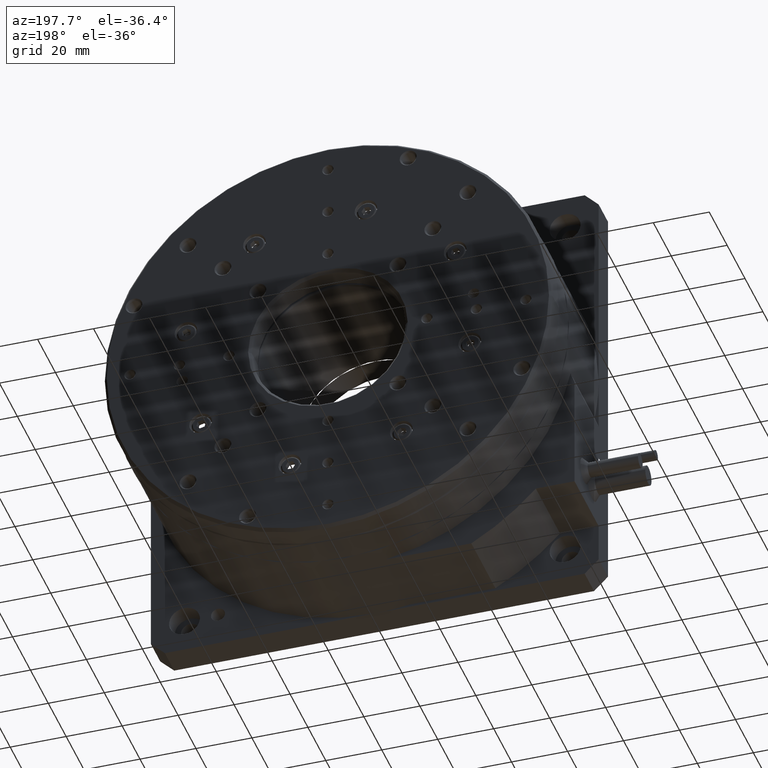
[diagram: clean part render]
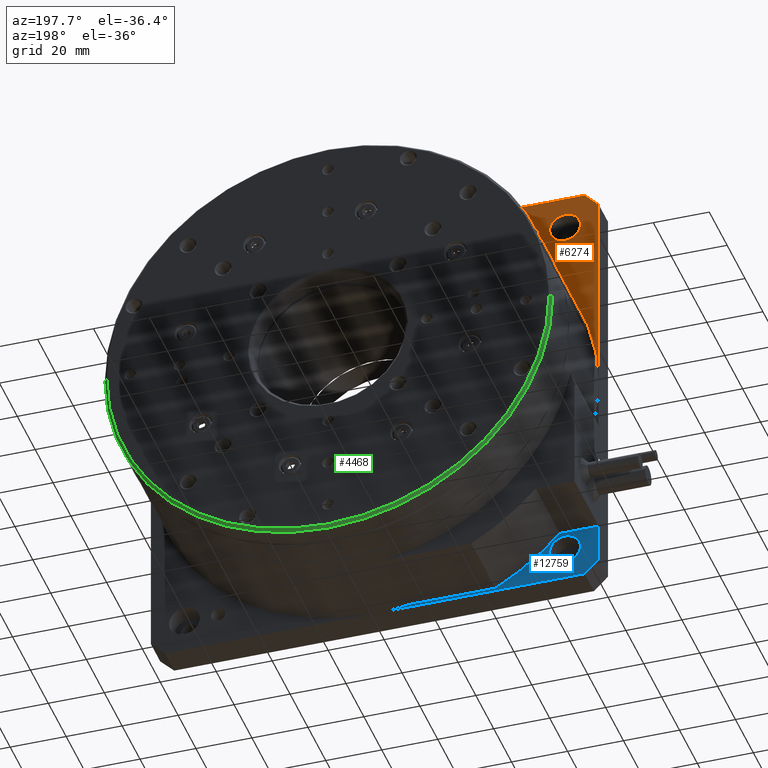
[diagram: same view with three faces highlighted in distinct colors, each labeled with its STEP entity id]
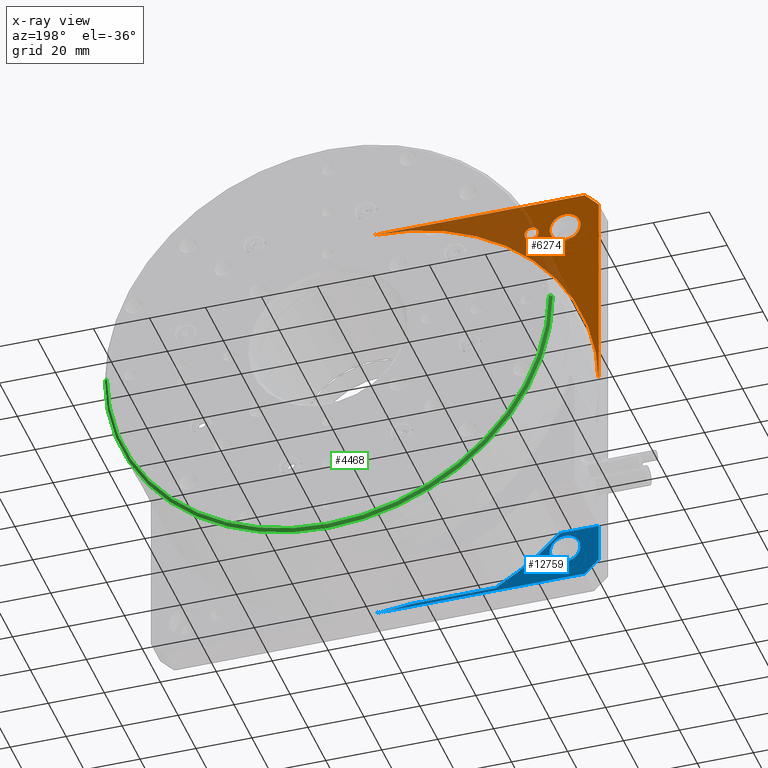
[diagram: x-ray of the same camera — body ghosted, the three highlighted faces saturated]
A machine part, auxiliary view with three faces highlighted in distinct colors.
The next image is the same camera in x-ray (body ghosted, the three faces saturated) — at least one of them is partly hidden behind the body in this view.
Their STEP definitions:

[orange] entity #6274 — the highlighted planar face has unit normal (-0, -1, 0).
#166 = DIRECTION ( 'NONE',  ( -1.728409803594637900E-018, -1.000000000000000000, 1.944368977947036900E-016 ) ) ;
#484 = LINE ( 'NONE', #6547, #12218 ) ;
#1052 = DIRECTION ( 'NONE',  ( 3.469446951953675000E-018, -5.543721698860720200E-017, -1.000000000000000000 ) ) ;
#1299 = DIRECTION ( 'NONE',  ( 1.728409803594637900E-018, 1.000000000000000000, -1.944368977947036900E-016 ) ) ;
#1351 = DIRECTION ( 'NONE',  ( 0.0000000000000000000, 0.0000000000000000000, 1.000000000000000000 ) ) ;
#1483 = DIRECTION ( 'NONE',  ( -1.728409803594625400E-018, -1.000000000000000000, 5.543721698860720200E-017 ) ) ;
#2033 = FACE_BOUND ( 'NONE', #2863, .T. ) ;
#2859 = VERTEX_POINT ( 'NONE', #9025 ) ;
#2863 = EDGE_LOOP ( 'NONE', ( #13310, #16384 ) ) ;
#3041 = EDGE_CURVE ( 'NONE', #14170, #3422, #3242, .T. ) ;
#3242 = CIRCLE ( 'NONE', #7430, 2.500000000000002200 ) ;
#3422 = VERTEX_POINT ( 'NONE', #13102 ) ;
#3698 = AXIS2_PLACEMENT_3D ( 'NONE', #16137, #6797, #9229 ) ;
#4058 = EDGE_CURVE ( 'NONE', #14409, #15562, #484, .T. ) ;
#4072 = CARTESIAN_POINT ( 'NONE',  ( 0.0000000000000000000, 10.50000000000000700, -5.000000000000046200 ) ) ;
#4084 = ORIENTED_EDGE ( 'NONE', *, *, #10600, .F. ) ;
#4410 = DIRECTION ( 'NONE',  ( -1.000000000000000000, -8.642049017973337000E-019, -2.636779683484748800E-016 ) ) ;
#4820 = CIRCLE ( 'NONE', #3698, 5.499999999999992000 ) ;
#4915 = AXIS2_PLACEMENT_3D ( 'NONE', #6689, #1483, #9394 ) ;
#4962 = FACE_OUTER_BOUND ( 'NONE', #9411, .T. ) ;
#5361 = ORIENTED_EDGE ( 'NONE', *, *, #11178, .F. ) ;
#5568 = EDGE_CURVE ( 'NONE', #16189, #11620, #4820, .T. ) ;
#5614 = PLANE ( 'NONE',  #4915 ) ;
#5795 = ORIENTED_EDGE ( 'NONE', *, *, #5568, .F. ) ;
#6258 = CIRCLE ( 'NONE', #7056, 80.00000000000000000 ) ;
#6274 = ADVANCED_FACE ( 'NONE', ( #4962, #2033, #10831 ), #5614, .F. ) ;
#6547 = CARTESIAN_POINT ( 'NONE',  ( -1.387778780781445700E-014, 10.50000000000000900, -4.163336342344337000E-014 ) ) ;
#6689 = CARTESIAN_POINT ( 'NONE',  ( 79.99999999999998600, 10.50000000000000400, -80.00000000000002800 ) ) ;
#6797 = DIRECTION ( 'NONE',  ( 1.728409803594637900E-018, 1.000000000000000000, -1.944368977947036900E-016 ) ) ;
#6880 = DIRECTION ( 'NONE',  ( 0.0000000000000000000, 0.0000000000000000000, 1.000000000000000000 ) ) ;
#7056 = AXIS2_PLACEMENT_3D ( 'NONE', #10278, #15500, #8804 ) ;
#7391 = EDGE_CURVE ( 'NONE', #14409, #2859, #15418, .T. ) ;
#7430 = AXIS2_PLACEMENT_3D ( 'NONE', #9596, #166, #6880 ) ;
#7846 = CARTESIAN_POINT ( 'NONE',  ( 11.99999999999999600, 10.50000000000000700, -6.500000000000005300 ) ) ;
#8018 = DIRECTION ( 'NONE',  ( -1.728409803594637900E-018, -1.000000000000000000, 1.944368977947036900E-016 ) ) ;
#8552 = ORIENTED_EDGE ( 'NONE', *, *, #14501, .F. ) ;
#8632 = CARTESIAN_POINT ( 'NONE',  ( 0.0000000000000000000, 10.50000000000000400, -80.00000000000002800 ) ) ;
#8804 = DIRECTION ( 'NONE',  ( 1.734723475976807100E-016, -6.505213034913026600E-017, -1.000000000000000000 ) ) ;
#8864 = CARTESIAN_POINT ( 'NONE',  ( 4.999999999999976900, 10.50000000000000900, -2.775557561562891400E-014 ) ) ;
#9025 = CARTESIAN_POINT ( 'NONE',  ( 5.000000000000004400, 10.50000000000000900, -2.775557561562891400E-014 ) ) ;
#9229 = DIRECTION ( 'NONE',  ( 0.0000000000000000000, 0.0000000000000000000, 1.000000000000000000 ) ) ;
#9371 = DIRECTION ( 'NONE',  ( 0.0000000000000000000, 0.0000000000000000000, 1.000000000000000000 ) ) ;
#9394 = DIRECTION ( 'NONE',  ( 9.020562075079401800E-017, -5.543721698860720200E-017, -1.000000000000000000 ) ) ;
#9411 = EDGE_LOOP ( 'NONE', ( #9458, #10784, #8552, #4084 ) ) ;
#9458 = ORIENTED_EDGE ( 'NONE', *, *, #4058, .F. ) ;
#9596 = CARTESIAN_POINT ( 'NONE',  ( 23.99999999999998600, 10.50000000000000900, -11.99999999999998200 ) ) ;
#9748 = VECTOR ( 'NONE', #10117, 1000.000000000000000 ) ;
#10117 = DIRECTION ( 'NONE',  ( 0.7071067811865463500, 3.981111720914984000E-017, 0.7071067811865487900 ) ) ;
#10207 = EDGE_CURVE ( 'NONE', #3422, #14170, #13834, .T. ) ;
#10278 = CARTESIAN_POINT ( 'NONE',  ( 79.99999999999998600, 10.50000000000000400, -80.00000000000002800 ) ) ;
#10600 = EDGE_CURVE ( 'NONE', #15562, #11234, #6258, .T. ) ;
#10677 = CARTESIAN_POINT ( 'NONE',  ( 23.99999999999998600, 10.50000000000000900, -11.99999999999998200 ) ) ;
#10784 = ORIENTED_EDGE ( 'NONE', *, *, #7391, .T. ) ;
#10831 = FACE_BOUND ( 'NONE', #13588, .T. ) ;
#10915 = AXIS2_PLACEMENT_3D ( 'NONE', #10677, #8018, #9371 ) ;
#11178 = EDGE_CURVE ( 'NONE', #11620, #16189, #15920, .T. ) ;
#11234 = VERTEX_POINT ( 'NONE', #15942 ) ;
#11474 = CARTESIAN_POINT ( 'NONE',  ( 23.99999999999998600, 10.50000000000000900, -14.49999999999998600 ) ) ;
#11620 = VERTEX_POINT ( 'NONE', #15403 ) ;
#12218 = VECTOR ( 'NONE', #1052, 1000.000000000000000 ) ;
#12356 = VECTOR ( 'NONE', #4410, 1000.000000000000000 ) ;
#12512 = CARTESIAN_POINT ( 'NONE',  ( 159.9999999999999700, 10.50000000000000900, 1.387778780781445700E-014 ) ) ;
#13102 = CARTESIAN_POINT ( 'NONE',  ( 23.99999999999998600, 10.50000000000000900, -9.499999999999980500 ) ) ;
#13310 = ORIENTED_EDGE ( 'NONE', *, *, #10207, .T. ) ;
#13588 = EDGE_LOOP ( 'NONE', ( #5795, #5361 ) ) ;
#13834 = CIRCLE ( 'NONE', #10915, 2.500000000000002200 ) ;
#14170 = VERTEX_POINT ( 'NONE', #11474 ) ;
#14409 = VERTEX_POINT ( 'NONE', #4072 ) ;
#14501 = EDGE_CURVE ( 'NONE', #11234, #2859, #14860, .T. ) ;
#14601 = CARTESIAN_POINT ( 'NONE',  ( 11.99999999999999600, 10.50000000000000700, -11.99999999999999600 ) ) ;
#14860 = LINE ( 'NONE', #12512, #12356 ) ;
#15403 = CARTESIAN_POINT ( 'NONE',  ( 11.99999999999999800, 10.50000000000000500, -17.49999999999998900 ) ) ;
#15418 = LINE ( 'NONE', #8864, #9748 ) ;
#15500 = DIRECTION ( 'NONE',  ( 1.728409803594637900E-018, 1.000000000000000000, -1.944368977947036900E-016 ) ) ;
#15562 = VERTEX_POINT ( 'NONE', #8632 ) ;
#15642 = AXIS2_PLACEMENT_3D ( 'NONE', #14601, #1299, #1351 ) ;
#15920 = CIRCLE ( 'NONE', #15642, 5.499999999999992000 ) ;
#15942 = CARTESIAN_POINT ( 'NONE',  ( 79.99999999999997200, 10.50000000000000900, -1.387778780781445700E-014 ) ) ;
#16137 = CARTESIAN_POINT ( 'NONE',  ( 11.99999999999999600, 10.50000000000000700, -11.99999999999999600 ) ) ;
#16189 = VERTEX_POINT ( 'NONE', #7846 ) ;
#16384 = ORIENTED_EDGE ( 'NONE', *, *, #3041, .T. ) ;

[blue] entity #12759 — the highlighted planar face has unit normal (-0, -1, 0).
#78 = CARTESIAN_POINT ( 'NONE',  ( 0.009999999999996123100, 10.50000000000000200, -116.0500000000000400 ) ) ;
#264 = CIRCLE ( 'NONE', #16058, 90.00000000000001400 ) ;
#738 = CARTESIAN_POINT ( 'NONE',  ( 79.99999999999998600, 10.50000000000000400, -80.00000000000002800 ) ) ;
#780 = CARTESIAN_POINT ( 'NONE',  ( 80.00000000000000000, 10.49999999999999800, -159.0000000000000600 ) ) ;
#822 = LINE ( 'NONE', #7407, #15070 ) ;
#954 = VECTOR ( 'NONE', #11828, 1000.000000000000000 ) ;
#1059 = CARTESIAN_POINT ( 'NONE',  ( 0.009999999999996123100, 10.50000000000000000, -141.0000000000000600 ) ) ;
#1310 = VERTEX_POINT ( 'NONE', #6244 ) ;
#1339 = EDGE_LOOP ( 'NONE', ( #4035, #2137, #13124, #16156, #6502, #10803, #3821, #9332, #8818 ) ) ;
#1362 = CARTESIAN_POINT ( 'NONE',  ( 12.00000000000020600, 10.49999999999999800, -153.5000000000002800 ) ) ;
#1370 = DIRECTION ( 'NONE',  ( 1.734723475976807100E-016, -6.505213034913026600E-017, -1.000000000000000000 ) ) ;
#1702 = FACE_BOUND ( 'NONE', #14038, .T. ) ;
#1735 = CARTESIAN_POINT ( 'NONE',  ( 80.00000000000000000, 10.49999999999999800, -160.0000000000000300 ) ) ;
#2058 = CARTESIAN_POINT ( 'NONE',  ( 36.88387772537981800, 10.49999999999999800, -159.0000000000000600 ) ) ;
#2137 = ORIENTED_EDGE ( 'NONE', *, *, #8560, .F. ) ;
#2193 = EDGE_CURVE ( 'NONE', #2411, #2218, #16903, .T. ) ;
#2218 = VERTEX_POINT ( 'NONE', #2058 ) ;
#2223 = CARTESIAN_POINT ( 'NONE',  ( 12.00000000000020400, 10.50000000000000000, -148.0000000000002800 ) ) ;
#2346 = EDGE_CURVE ( 'NONE', #16635, #5307, #7859, .T. ) ;
#2411 = VERTEX_POINT ( 'NONE', #6560 ) ;
#2424 = VERTEX_POINT ( 'NONE', #1362 ) ;
#2965 = CARTESIAN_POINT ( 'NONE',  ( 13.82598697373718700, 10.50000000000000000, -141.0000000000000600 ) ) ;
#3291 = DIRECTION ( 'NONE',  ( 3.469446951953675000E-018, -5.543721698860720200E-017, -1.000000000000000000 ) ) ;
#3431 = ORIENTED_EDGE ( 'NONE', *, *, #6914, .F. ) ;
#3505 = VERTEX_POINT ( 'NONE', #78 ) ;
#3549 = AXIS2_PLACEMENT_3D ( 'NONE', #9443, #16074, #1370 ) ;
#3821 = ORIENTED_EDGE ( 'NONE', *, *, #13168, .F. ) ;
#3896 = AXIS2_PLACEMENT_3D ( 'NONE', #2223, #17061, #10206 ) ;
#4035 = ORIENTED_EDGE ( 'NONE', *, *, #16386, .F. ) ;
#4214 = VECTOR ( 'NONE', #3291, 1000.000000000000000 ) ;
#4602 = VECTOR ( 'NONE', #11876, 1000.000000000000000 ) ;
#4772 = DIRECTION ( 'NONE',  ( 1.728409803594637900E-018, 1.000000000000000000, -1.944368977947036900E-016 ) ) ;
#4845 = CARTESIAN_POINT ( 'NONE',  ( -1.387778780781445700E-014, 10.50000000000000200, -116.0500000000000500 ) ) ;
#4857 = LINE ( 'NONE', #16011, #7564 ) ;
#5277 = CARTESIAN_POINT ( 'NONE',  ( -1.387778780781445700E-014, 10.50000000000000000, -155.0000000000000900 ) ) ;
#5307 = VERTEX_POINT ( 'NONE', #1735 ) ;
#6227 = DIRECTION ( 'NONE',  ( 1.728409803594637900E-018, 1.000000000000000000, -1.944368977947036900E-016 ) ) ;
#6244 = CARTESIAN_POINT ( 'NONE',  ( -2.775557561562891400E-014, 10.50000000000000000, -155.0000000000000300 ) ) ;
#6288 = CARTESIAN_POINT ( 'NONE',  ( 12.00000000000020400, 10.50000000000000000, -148.0000000000002800 ) ) ;
#6502 = ORIENTED_EDGE ( 'NONE', *, *, #2346, .F. ) ;
#6560 = CARTESIAN_POINT ( 'NONE',  ( 67.39047978708158800, 10.49999999999999800, -159.0000000000000600 ) ) ;
#6895 = CIRCLE ( 'NONE', #3896, 5.500000000000005300 ) ;
#6914 = EDGE_CURVE ( 'NONE', #9671, #2424, #12288, .T. ) ;
#7209 = DIRECTION ( 'NONE',  ( 9.020562075079401800E-017, -5.543721698860720200E-017, -1.000000000000000000 ) ) ;
#7407 = CARTESIAN_POINT ( 'NONE',  ( 79.99999999999998600, 10.50000000000000200, -116.0500000000000400 ) ) ;
#7564 = VECTOR ( 'NONE', #17349, 1000.000000000000000 ) ;
#7859 = LINE ( 'NONE', #10395, #954 ) ;
#8032 = DIRECTION ( 'NONE',  ( -9.020562075079401800E-017, 5.543721698860720200E-017, 1.000000000000000000 ) ) ;
#8084 = CARTESIAN_POINT ( 'NONE',  ( 12.00000000000020400, 10.50000000000000000, -142.5000000000002600 ) ) ;
#8549 = AXIS2_PLACEMENT_3D ( 'NONE', #738, #10124, #7209 ) ;
#8560 = EDGE_CURVE ( 'NONE', #2218, #17049, #264, .T. ) ;
#8652 = CARTESIAN_POINT ( 'NONE',  ( 5.000000000000004400, 10.49999999999999800, -160.0000000000000600 ) ) ;
#8818 = ORIENTED_EDGE ( 'NONE', *, *, #10792, .F. ) ;
#9246 = LINE ( 'NONE', #14014, #4214 ) ;
#9332 = ORIENTED_EDGE ( 'NONE', *, *, #13699, .F. ) ;
#9443 = CARTESIAN_POINT ( 'NONE',  ( 79.99999999999998600, 10.50000000000000400, -80.00000000000002800 ) ) ;
#9671 = VERTEX_POINT ( 'NONE', #8084 ) ;
#10119 = EDGE_CURVE ( 'NONE', #16635, #1310, #15292, .T. ) ;
#10124 = DIRECTION ( 'NONE',  ( -1.728409803594625400E-018, -1.000000000000000000, 5.543721698860720200E-017 ) ) ;
#10206 = DIRECTION ( 'NONE',  ( 0.0000000000000000000, 0.0000000000000000000, 1.000000000000000000 ) ) ;
#10395 = CARTESIAN_POINT ( 'NONE',  ( 160.0000000000000000, 10.49999999999999800, -160.0000000000000300 ) ) ;
#10792 = EDGE_CURVE ( 'NONE', #14826, #3505, #11753, .T. ) ;
#10803 = ORIENTED_EDGE ( 'NONE', *, *, #10119, .T. ) ;
#10911 = CARTESIAN_POINT ( 'NONE',  ( 0.009999999999996123100, 10.50000000000000400, -80.00000000000004300 ) ) ;
#11313 = VECTOR ( 'NONE', #8032, 1000.000000000000000 ) ;
#11327 = ORIENTED_EDGE ( 'NONE', *, *, #13280, .F. ) ;
#11329 = CIRCLE ( 'NONE', #3549, 80.00000000000000000 ) ;
#11599 = DIRECTION ( 'NONE',  ( 9.251858538542969900E-016, -5.782411586589356200E-017, -1.000000000000000000 ) ) ;
#11753 = LINE ( 'NONE', #10911, #11313 ) ;
#11828 = DIRECTION ( 'NONE',  ( 1.000000000000000000, 8.642049017973337000E-019, 2.636779683484748300E-016 ) ) ;
#11876 = DIRECTION ( 'NONE',  ( -0.7071067811865475700, 3.858894691635869000E-017, 0.7071067811865474600 ) ) ;
#12288 = CIRCLE ( 'NONE', #16039, 5.500000000000005300 ) ;
#12729 = VECTOR ( 'NONE', #14153, 1000.000000000000000 ) ;
#12759 = ADVANCED_FACE ( 'NONE', ( #17241, #1702 ), #16727, .F. ) ;
#13124 = ORIENTED_EDGE ( 'NONE', *, *, #2193, .F. ) ;
#13168 = EDGE_CURVE ( 'NONE', #13689, #1310, #9246, .T. ) ;
#13280 = EDGE_CURVE ( 'NONE', #2424, #9671, #6895, .T. ) ;
#13689 = VERTEX_POINT ( 'NONE', #4845 ) ;
#13699 = EDGE_CURVE ( 'NONE', #3505, #13689, #822, .T. ) ;
#14014 = CARTESIAN_POINT ( 'NONE',  ( -1.387778780781445700E-014, 10.50000000000000900, -4.163336342344337000E-014 ) ) ;
#14038 = EDGE_LOOP ( 'NONE', ( #3431, #11327 ) ) ;
#14153 = DIRECTION ( 'NONE',  ( -1.000000000000000000, -8.642049017973240700E-019, -9.020562075079404300E-017 ) ) ;
#14355 = DIRECTION ( 'NONE',  ( 0.0000000000000000000, 0.0000000000000000000, 1.000000000000000000 ) ) ;
#14375 = EDGE_CURVE ( 'NONE', #5307, #2411, #11329, .T. ) ;
#14826 = VERTEX_POINT ( 'NONE', #1059 ) ;
#15070 = VECTOR ( 'NONE', #16741, 1000.000000000000000 ) ;
#15292 = LINE ( 'NONE', #5277, #4602 ) ;
#16011 = CARTESIAN_POINT ( 'NONE',  ( 79.99999999999998600, 10.50000000000000000, -141.0000000000000600 ) ) ;
#16039 = AXIS2_PLACEMENT_3D ( 'NONE', #6288, #6227, #14355 ) ;
#16058 = AXIS2_PLACEMENT_3D ( 'NONE', #16855, #4772, #11599 ) ;
#16074 = DIRECTION ( 'NONE',  ( 1.728409803594637900E-018, 1.000000000000000000, -1.944368977947036900E-016 ) ) ;
#16156 = ORIENTED_EDGE ( 'NONE', *, *, #14375, .F. ) ;
#16386 = EDGE_CURVE ( 'NONE', #17049, #14826, #4857, .T. ) ;
#16635 = VERTEX_POINT ( 'NONE', #8652 ) ;
#16727 = PLANE ( 'NONE',  #8549 ) ;
#16741 = DIRECTION ( 'NONE',  ( -1.000000000000000000, -8.642049017973240700E-019, -9.020562075079404300E-017 ) ) ;
#16855 = CARTESIAN_POINT ( 'NONE',  ( 79.99999999999998600, 10.50000000000000400, -80.00000000000002800 ) ) ;
#16903 = LINE ( 'NONE', #780, #12729 ) ;
#17049 = VERTEX_POINT ( 'NONE', #2965 ) ;
#17061 = DIRECTION ( 'NONE',  ( 1.728409803594637900E-018, 1.000000000000000000, -1.944368977947036900E-016 ) ) ;
#17241 = FACE_OUTER_BOUND ( 'NONE', #1339, .T. ) ;
#17349 = DIRECTION ( 'NONE',  ( -1.000000000000000000, -8.642049017973240700E-019, -9.020562075079404300E-017 ) ) ;

[green] entity #4468 — the highlighted conical surface has half-angle 45 deg.
#1037 = CIRCLE ( 'NONE', #5460, 80.00000000000001400 ) ;
#2405 = CARTESIAN_POINT ( 'NONE',  ( 0.9999999999999870100, 63.00000000000001400, -80.00000000000009900 ) ) ;
#2789 = ORIENTED_EDGE ( 'NONE', *, *, #6462, .T. ) ;
#3094 = CIRCLE ( 'NONE', #12230, 79.00000000000000000 ) ;
#3815 = DIRECTION ( 'NONE',  ( -0.7071067811865577900, -0.7071067811865373600, 3.907724963002873500E-016 ) ) ;
#4331 = LINE ( 'NONE', #14096, #16911 ) ;
#4425 = LINE ( 'NONE', #14644, #14909 ) ;
#4468 = ADVANCED_FACE ( 'NONE', ( #6539 ), #6734, .T. ) ;
#5460 = AXIS2_PLACEMENT_3D ( 'NONE', #17371, #13457, #8040 ) ;
#5532 = EDGE_CURVE ( 'NONE', #7513, #10618, #1037, .T. ) ;
#6462 = EDGE_CURVE ( 'NONE', #12172, #10618, #4331, .T. ) ;
#6539 = FACE_OUTER_BOUND ( 'NONE', #10698, .T. ) ;
#6734 = CONICAL_SURFACE ( 'NONE', #8800, 79.00000000000000000, 0.7853981633974621600 ) ;
#6808 = ORIENTED_EDGE ( 'NONE', *, *, #16808, .F. ) ;
#7513 = VERTEX_POINT ( 'NONE', #14559 ) ;
#8040 = DIRECTION ( 'NONE',  ( -1.000000000000000000, 4.336808689942016700E-016, 0.0000000000000000000 ) ) ;
#8728 = DIRECTION ( 'NONE',  ( 0.7071067811865570100, -0.7071067811865379100, 3.041768906767367600E-016 ) ) ;
#8800 = AXIS2_PLACEMENT_3D ( 'NONE', #15733, #10363, #8885 ) ;
#8885 = DIRECTION ( 'NONE',  ( 1.000000000000000000, -3.513364001978343500E-016, 0.0000000000000000000 ) ) ;
#9891 = ORIENTED_EDGE ( 'NONE', *, *, #15582, .F. ) ;
#10363 = DIRECTION ( 'NONE',  ( -4.014435913841642000E-016, -1.000000000000000000, 4.301710841555254300E-016 ) ) ;
#10618 = VERTEX_POINT ( 'NONE', #11595 ) ;
#10698 = EDGE_LOOP ( 'NONE', ( #6808, #9891, #2789, #12769 ) ) ;
#11595 = CARTESIAN_POINT ( 'NONE',  ( 159.9999999999999700, 61.99999999999996400, -80.00000000000011400 ) ) ;
#11666 = DIRECTION ( 'NONE',  ( 4.014435913841642000E-016, 1.000000000000000000, -4.301710841555254300E-016 ) ) ;
#12172 = VERTEX_POINT ( 'NONE', #12982 ) ;
#12230 = AXIS2_PLACEMENT_3D ( 'NONE', #12942, #11666, #17033 ) ;
#12769 = ORIENTED_EDGE ( 'NONE', *, *, #5532, .F. ) ;
#12942 = CARTESIAN_POINT ( 'NONE',  ( 79.99999999999997200, 62.99999999999998600, -80.00000000000011400 ) ) ;
#12982 = CARTESIAN_POINT ( 'NONE',  ( 158.9999999999999700, 62.99999999999995700, -80.00000000000011400 ) ) ;
#13257 = VERTEX_POINT ( 'NONE', #2405 ) ;
#13457 = DIRECTION ( 'NONE',  ( -4.014435913841642000E-016, -1.000000000000000000, 4.301710841555254300E-016 ) ) ;
#14096 = CARTESIAN_POINT ( 'NONE',  ( 158.9999999999999700, 62.99999999999995700, -80.00000000000011400 ) ) ;
#14559 = CARTESIAN_POINT ( 'NONE',  ( -2.775557561562891400E-014, 62.00000000000003600, -80.00000000000009900 ) ) ;
#14644 = CARTESIAN_POINT ( 'NONE',  ( 0.9999999999999731300, 63.00000000000001400, -80.00000000000009900 ) ) ;
#14909 = VECTOR ( 'NONE', #3815, 1000.000000000000000 ) ;
#15582 = EDGE_CURVE ( 'NONE', #12172, #13257, #3094, .T. ) ;
#15733 = CARTESIAN_POINT ( 'NONE',  ( 79.99999999999997200, 62.99999999999998600, -80.00000000000011400 ) ) ;
#16808 = EDGE_CURVE ( 'NONE', #13257, #7513, #4425, .T. ) ;
#16911 = VECTOR ( 'NONE', #8728, 1000.000000000000100 ) ;
#17033 = DIRECTION ( 'NONE',  ( -1.000000000000000000, 3.513364001978343500E-016, 0.0000000000000000000 ) ) ;
#17371 = CARTESIAN_POINT ( 'NONE',  ( 79.99999999999997200, 62.00000000000000000, -80.00000000000011400 ) ) ;